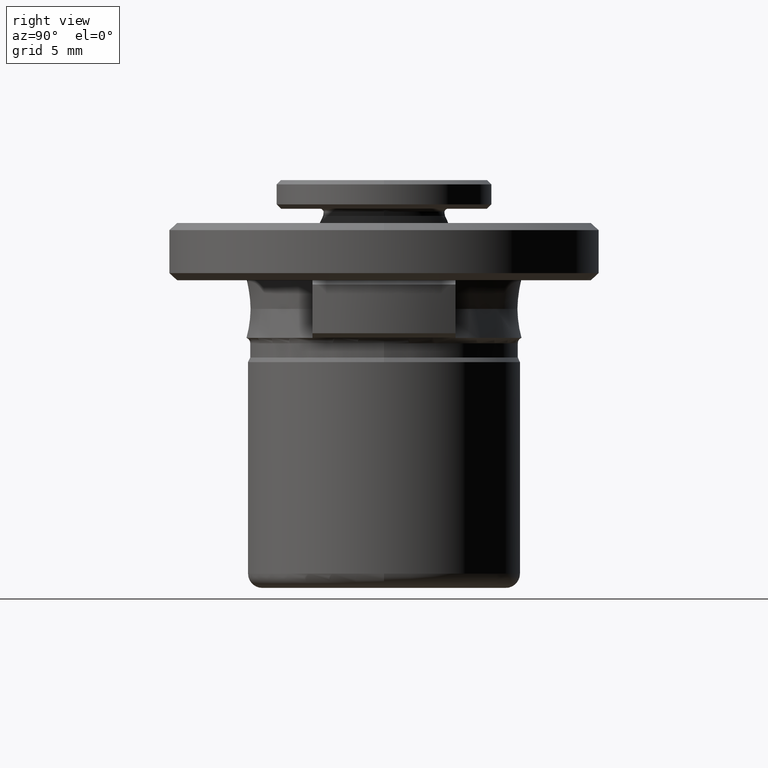
[diagram: clean part render]
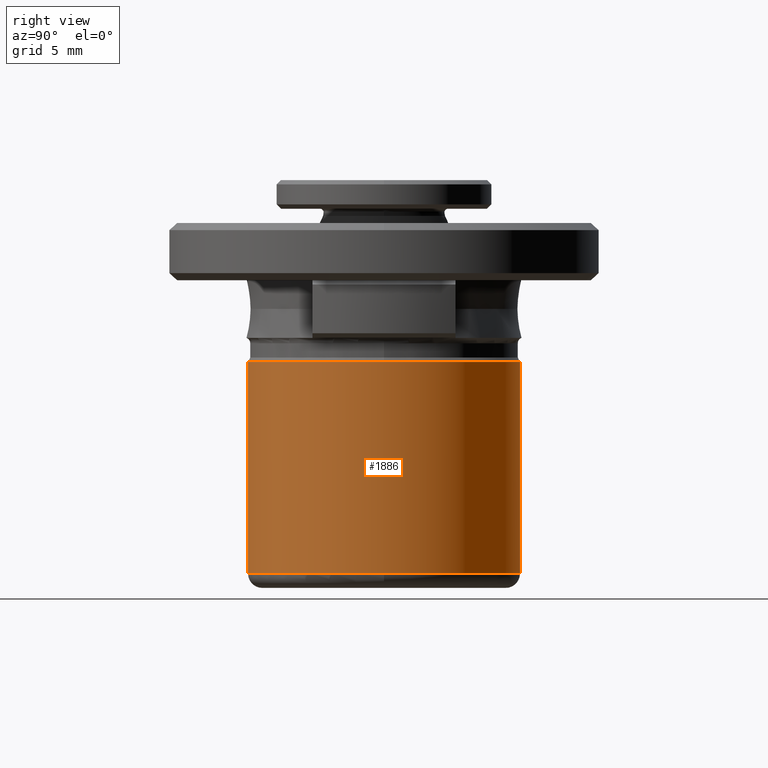
[diagram: same view with one face highlighted and labeled with its STEP entity id]
A machine part, right view. The second image highlights one B-rep face of the part: STEP entity #1886.
In plain terms, the highlighted cylindrical surface (partial cylindrical patch) has radius 9.5 mm, axis along (0, -0, 1).
Its self-contained STEP definition (entity closure, byte-faithful):
#33 = DIRECTION ( 'NONE',  ( 0.0000000000000000000, 0.0000000000000000000, 1.000000000000000000 ) ) ;
#115 = DIRECTION ( 'NONE',  ( 0.0000000000000000000, -1.000000000000000000, 0.0000000000000000000 ) ) ;
#215 = VERTEX_POINT ( 'NONE', #1720 ) ;
#302 = DIRECTION ( 'NONE',  ( 0.0000000000000000000, -4.565061778886334800E-017, 1.000000000000000000 ) ) ;
#313 = ORIENTED_EDGE ( 'NONE', *, *, #1036, .T. ) ;
#369 = DIRECTION ( 'NONE',  ( 0.0000000000000000000, 0.0000000000000000000, 1.000000000000000000 ) ) ;
#402 = EDGE_CURVE ( 'NONE', #935, #499, #1270, .T. ) ;
#499 = VERTEX_POINT ( 'NONE', #1110 ) ;
#532 = CARTESIAN_POINT ( 'NONE',  ( 0.0000000000000000000, 0.0000000000000000000, 3.030000000000088200 ) ) ;
#581 = LINE ( 'NONE', #1440, #1376 ) ;
#701 = DIRECTION ( 'NONE',  ( -1.000000000000000000, 0.0000000000000000000, -9.312726028928122700E-015 ) ) ;
#767 = CARTESIAN_POINT ( 'NONE',  ( 0.0000000000000000000, -9.500000000000000000, 3.030000000000088200 ) ) ;
#820 = DIRECTION ( 'NONE',  ( 0.0000000000000000000, 0.0000000000000000000, -1.000000000000000000 ) ) ;
#853 = VERTEX_POINT ( 'NONE', #767 ) ;
#935 = VERTEX_POINT ( 'NONE', #1300 ) ;
#998 = CARTESIAN_POINT ( 'NONE',  ( 0.0000000000000000000, 2.364620801796248300E-016, -11.75000000000000000 ) ) ;
#1009 = ORIENTED_EDGE ( 'NONE', *, *, #1322, .F. ) ;
#1012 = AXIS2_PLACEMENT_3D ( 'NONE', #1258, #1416, #115 ) ;
#1019 = FACE_OUTER_BOUND ( 'NONE', #1689, .T. ) ;
#1036 = EDGE_CURVE ( 'NONE', #1965, #1410, #1441, .T. ) ;
#1103 = EDGE_CURVE ( 'NONE', #1410, #935, #1259, .T. ) ;
#1110 = CARTESIAN_POINT ( 'NONE',  ( 9.499999999999957400, 1.163414459189980600E-015, 3.030000000000088200 ) ) ;
#1167 = DIRECTION ( 'NONE',  ( 1.000000000000000000, 0.0000000000000000000, 0.0000000000000000000 ) ) ;
#1172 = CIRCLE ( 'NONE', #1613, 9.500000000000000000 ) ;
#1195 = ORIENTED_EDGE ( 'NONE', *, *, #2034, .T. ) ;
#1258 = CARTESIAN_POINT ( 'NONE',  ( 0.0000000000000000000, 0.0000000000000000000, -6.570177872000000400 ) ) ;
#1259 = LINE ( 'NONE', #1663, #2068 ) ;
#1270 = CIRCLE ( 'NONE', #2060, 9.500000000000000000 ) ;
#1300 = CARTESIAN_POINT ( 'NONE',  ( 1.163414459189985500E-015, 9.500000000000000000, 3.030000000000088200 ) ) ;
#1322 = EDGE_CURVE ( 'NONE', #215, #853, #581, .T. ) ;
#1339 = CARTESIAN_POINT ( 'NONE',  ( 0.0000000000000000000, 2.364620801796248300E-016, -11.75000000000000000 ) ) ;
#1376 = VECTOR ( 'NONE', #302, 1000.000000000000000 ) ;
#1403 = CYLINDRICAL_SURFACE ( 'NONE', #1012, 9.500000000000000000 ) ;
#1410 = VERTEX_POINT ( 'NONE', #2082 ) ;
#1416 = DIRECTION ( 'NONE',  ( 0.0000000000000000000, -4.565061778886334800E-017, 1.000000000000000000 ) ) ;
#1428 = CARTESIAN_POINT ( 'NONE',  ( 9.500000000000001800, 2.364620801796248300E-016, -11.75000000000000000 ) ) ;
#1440 = CARTESIAN_POINT ( 'NONE',  ( 0.0000000000000000000, -9.500000000000000000, -6.570177872000000400 ) ) ;
#1441 = CIRCLE ( 'NONE', #1501, 9.500000000000000000 ) ;
#1445 = AXIS2_PLACEMENT_3D ( 'NONE', #1339, #369, #1508 ) ;
#1501 = AXIS2_PLACEMENT_3D ( 'NONE', #998, #33, #1167 ) ;
#1508 = DIRECTION ( 'NONE',  ( 1.000000000000000000, 0.0000000000000000000, 0.0000000000000000000 ) ) ;
#1613 = AXIS2_PLACEMENT_3D ( 'NONE', #532, #1668, #701 ) ;
#1663 = CARTESIAN_POINT ( 'NONE',  ( 1.163414459189985500E-015, 9.500000000000000000, -6.570177872000000400 ) ) ;
#1668 = DIRECTION ( 'NONE',  ( 0.0000000000000000000, 0.0000000000000000000, -1.000000000000000000 ) ) ;
#1689 = EDGE_LOOP ( 'NONE', ( #1195, #313, #2002, #2048, #1986, #1009 ) ) ;
#1720 = CARTESIAN_POINT ( 'NONE',  ( 0.0000000000000000000, -9.500000000000000000, -11.75000000000000000 ) ) ;
#1726 = EDGE_CURVE ( 'NONE', #499, #853, #1172, .T. ) ;
#1733 = CIRCLE ( 'NONE', #1445, 9.500000000000000000 ) ;
#1784 = CARTESIAN_POINT ( 'NONE',  ( 0.0000000000000000000, 0.0000000000000000000, 3.030000000000088200 ) ) ;
#1820 = DIRECTION ( 'NONE',  ( 0.0000000000000000000, -4.565061778886334800E-017, 1.000000000000000000 ) ) ;
#1886 = ADVANCED_FACE ( 'NONE', ( #1019 ), #1403, .T. ) ;
#1950 = DIRECTION ( 'NONE',  ( -1.000000000000000000, 0.0000000000000000000, -9.312726028928122700E-015 ) ) ;
#1965 = VERTEX_POINT ( 'NONE', #1428 ) ;
#1986 = ORIENTED_EDGE ( 'NONE', *, *, #1726, .T. ) ;
#2002 = ORIENTED_EDGE ( 'NONE', *, *, #1103, .T. ) ;
#2034 = EDGE_CURVE ( 'NONE', #215, #1965, #1733, .T. ) ;
#2048 = ORIENTED_EDGE ( 'NONE', *, *, #402, .T. ) ;
#2060 = AXIS2_PLACEMENT_3D ( 'NONE', #1784, #820, #1950 ) ;
#2068 = VECTOR ( 'NONE', #1820, 1000.000000000000000 ) ;
#2082 = CARTESIAN_POINT ( 'NONE',  ( 1.163414459189985500E-015, 9.500000000000000000, -11.75000000000000000 ) ) ;